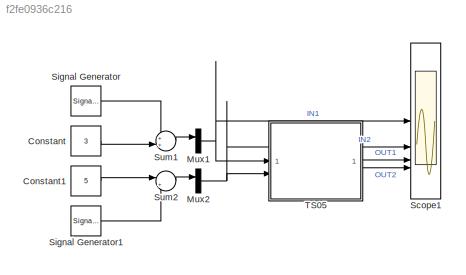
MODEL slx_f2fe0936c216
KIND model
CONFIG AbsTol = auto
CONFIG EnableMultiTasking = on
CONFIG FixedStep = auto
CONFIG MaxStep = auto
CONFIG MinStep = auto
CONFIG RelTol = 1e-3
CONFIG SampleTimeConstraint = Unconstrained
CONFIG SolverName = ode45
CONFIG StartTime = 0.0
CONFIG StopTime = 3*60
BLOCK [Constant] Constant
  Value = 3
BLOCK [Constant] Constant1
  Value = 5
BLOCK [Mux] Mux1
  DisplayOption = bar
  Inputs = 1
BLOCK [Mux] Mux2
  DisplayOption = bar
  Inputs = 1
BLOCK [Scope] Scope1
  Floating = off
  NumInputPorts = 4
  ScopeSpecificationString = Simulink.scopes.TimeScopeBlockCfg('CurrentConfiguration', extmgr.ConfigurationSet(extmgr.Configuration('Core','General UI',true),extmgr.Configuration('Core','Source UI',true),extmgr.Configuration('Sources','WiredSimulink',true,'DataLoggingVariableName','ScopeData1','DataLoggingSaveFormat','Array','DataLoggingDecimation','1','DataLoggingDecimateData',true),extmgr.Configuration('Visuals','Time Domai...<+3703ch>
BLOCK [SignalGenerator] Signal Generator
  Frequency = 1/10
  WaveForm = square
BLOCK [SignalGenerator] Signal Generator1
  Frequency = 1/10
BLOCK [Sum] Sum1
  Inputs = ++|
BLOCK [Sum] Sum2
  Inputs = |++
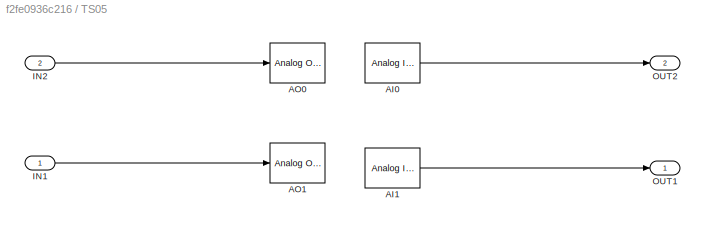
BLOCK [SubSystem] TS05
BLOCK [Reference] TS05/AI0  REF=sldrtlib/Analog Input
  AttributesFormatString = Advantech\nPCI-1711 [auto]
  SourceBlock = sldrtlib/Analog Input
  SourceType = Simulink Desktop Real-Time Analog Input
BLOCK [Reference] TS05/AI1  REF=sldrtlib/Analog Input
  AttributesFormatString = Advantech\nPCI-1711 [auto]
  SourceBlock = sldrtlib/Analog Input
  SourceType = Simulink Desktop Real-Time Analog Input
BLOCK [Reference] TS05/AO0  REF=sldrtlib/Analog Output
  AttributesFormatString = Advantech\nPCI-1711 [auto]
  SourceBlock = sldrtlib/Analog Output
  SourceType = Simulink Desktop Real-Time Analog Output
BLOCK [Reference] TS05/AO1  REF=sldrtlib/Analog Output
  AttributesFormatString = Advantech\nPCI-1711 [auto]
  SourceBlock = sldrtlib/Analog Output
  SourceType = Simulink Desktop Real-Time Analog Output
BLOCK [Inport] TS05/IN1
BLOCK [Inport] TS05/IN2
  Port = 2
BLOCK [Outport] TS05/OUT1
BLOCK [Outport] TS05/OUT2
  Port = 2
LINE Constant1:1 -> Sum2:1
LINE Constant:1 -> Sum1:2
NET Mux1:1 -> Scope1:1, TS05:1
NET Mux2:1 -> Scope1:2, TS05:2
LINE Signal Generator1:1 -> Sum2:2
LINE Signal Generator:1 -> Sum1:1
LINE Sum1:1 -> Mux1:1
LINE Sum2:1 -> Mux2:1
LINE TS05/AI0:1 -> TS05/OUT2:1
LINE TS05/AI1:1 -> TS05/OUT1:1
LINE TS05/IN1:1 -> TS05/AO1:1
LINE TS05/IN2:1 -> TS05/AO0:1
LINE TS05:1 -> Scope1:3
LINE TS05:2 -> Scope1:4
note: NET lines group one-source signal fan-out (src -> all destinations, sorted); 1:1 wires keep LINE
